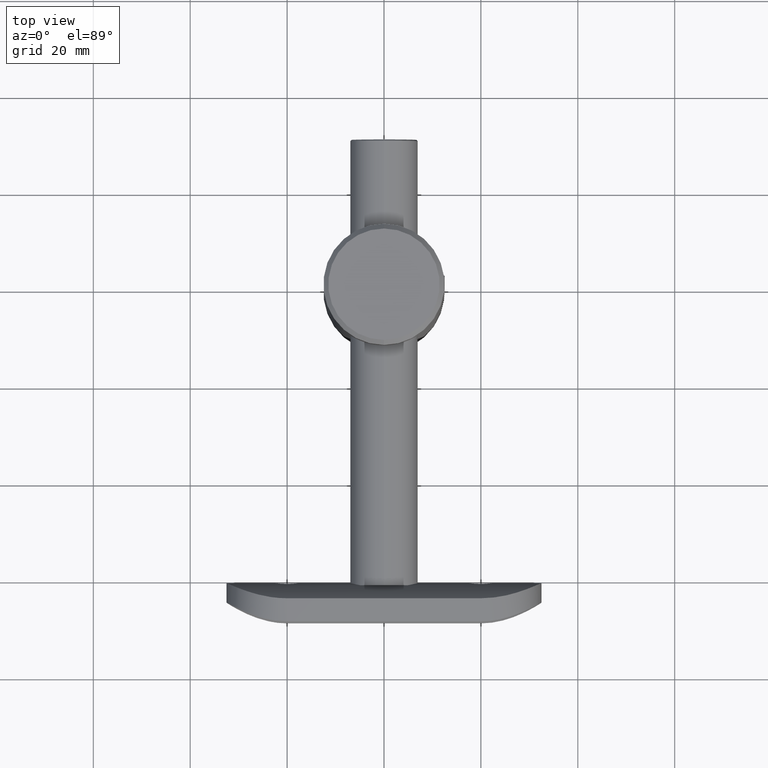
[diagram: clean part render]
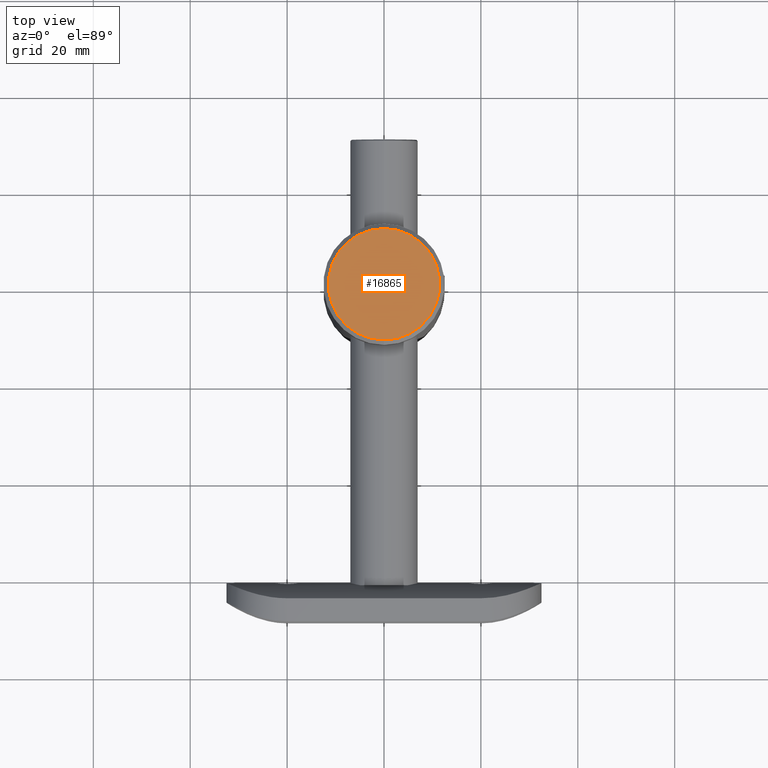
[diagram: same view with one face highlighted and labeled with its STEP entity id]
A machine part, top view. The second image highlights one B-rep face of the part: STEP entity #16865.
In plain terms, the highlighted planar face has unit normal (0, -0, 1).
Its self-contained STEP definition (entity closure, byte-faithful):
#1049 = CARTESIAN_POINT ( 'NONE',  ( 1.469576158976824736E-15, -11.50000000000001599, 88.00000000000000000 ) ) ;
#2376 = ORIENTED_EDGE ( 'NONE', *, *, #7419, .T. ) ;
#2465 = VERTEX_POINT ( 'NONE', #3462 ) ;
#3103 = EDGE_CURVE ( 'NONE', #16309, #2465, #17928, .T. ) ;
#3462 = CARTESIAN_POINT ( 'NONE',  ( 0.000000000000000000, 11.50000000000000178, 88.00000000000000000 ) ) ;
#3748 = AXIS2_PLACEMENT_3D ( 'NONE', #4941, #15564, #15689 ) ;
#4941 = CARTESIAN_POINT ( 'NONE',  ( 0.000000000000000000, -6.938893903907228378E-15, 88.00000000000000000 ) ) ;
#5255 = CARTESIAN_POINT ( 'NONE',  ( 0.000000000000000000, -6.938893903907228378E-15, 88.00000000000000000 ) ) ;
#6402 = FACE_OUTER_BOUND ( 'NONE', #19408, .T. ) ;
#6538 = CIRCLE ( 'NONE', #13567, 11.50000000000000888 ) ;
#6700 = PLANE ( 'NONE',  #18977 ) ;
#6922 = DIRECTION ( 'NONE',  ( 0.000000000000000000, -1.098045870766271941E-16, 1.000000000000000000 ) ) ;
#7419 = EDGE_CURVE ( 'NONE', #2465, #16309, #6538, .T. ) ;
#13567 = AXIS2_PLACEMENT_3D ( 'NONE', #5255, #6922, #17312 ) ;
#14899 = ORIENTED_EDGE ( 'NONE', *, *, #3103, .T. ) ;
#15564 = DIRECTION ( 'NONE',  ( 0.000000000000000000, -1.098045870766271941E-16, 1.000000000000000000 ) ) ;
#15653 = CARTESIAN_POINT ( 'NONE',  ( 0.000000000000000000, -6.938893903907228378E-15, 88.00000000000000000 ) ) ;
#15689 = DIRECTION ( 'NONE',  ( 0.000000000000000000, -1.000000000000000000, 0.000000000000000000 ) ) ;
#16309 = VERTEX_POINT ( 'NONE', #1049 ) ;
#16865 = ADVANCED_FACE ( 'NONE', ( #6402 ), #6700, .T. ) ;
#17312 = DIRECTION ( 'NONE',  ( 0.000000000000000000, -1.000000000000000000, 0.000000000000000000 ) ) ;
#17928 = CIRCLE ( 'NONE', #3748, 11.50000000000000888 ) ;
#18977 = AXIS2_PLACEMENT_3D ( 'NONE', #15653, #19462, #19003 ) ;
#19003 = DIRECTION ( 'NONE',  ( 0.000000000000000000, -1.000000000000000000, -1.098045870766271941E-16 ) ) ;
#19408 = EDGE_LOOP ( 'NONE', ( #2376, #14899 ) ) ;
#19462 = DIRECTION ( 'NONE',  ( 0.000000000000000000, -1.098045870766271941E-16, 1.000000000000000000 ) ) ;